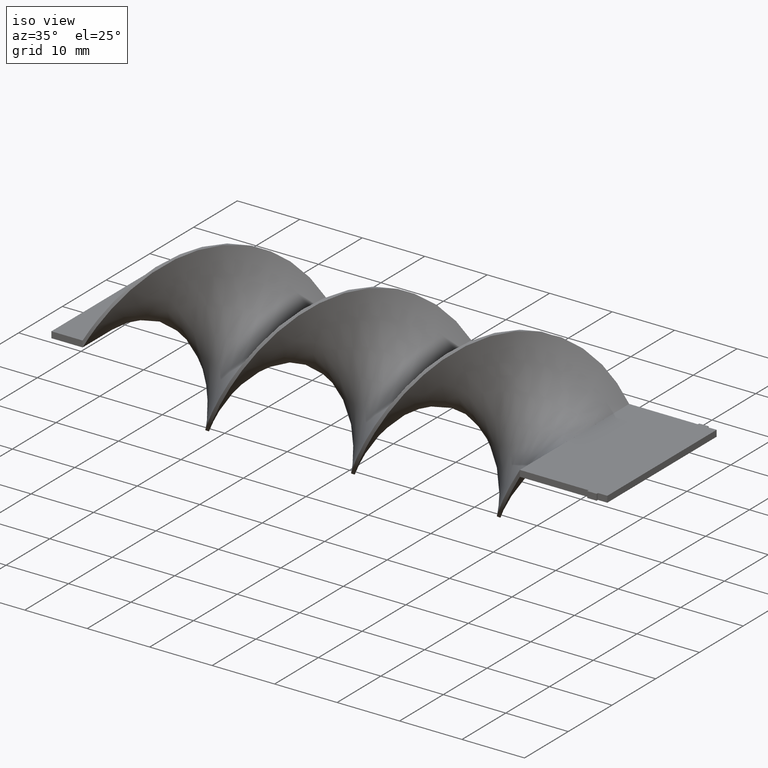
[diagram: clean part render]
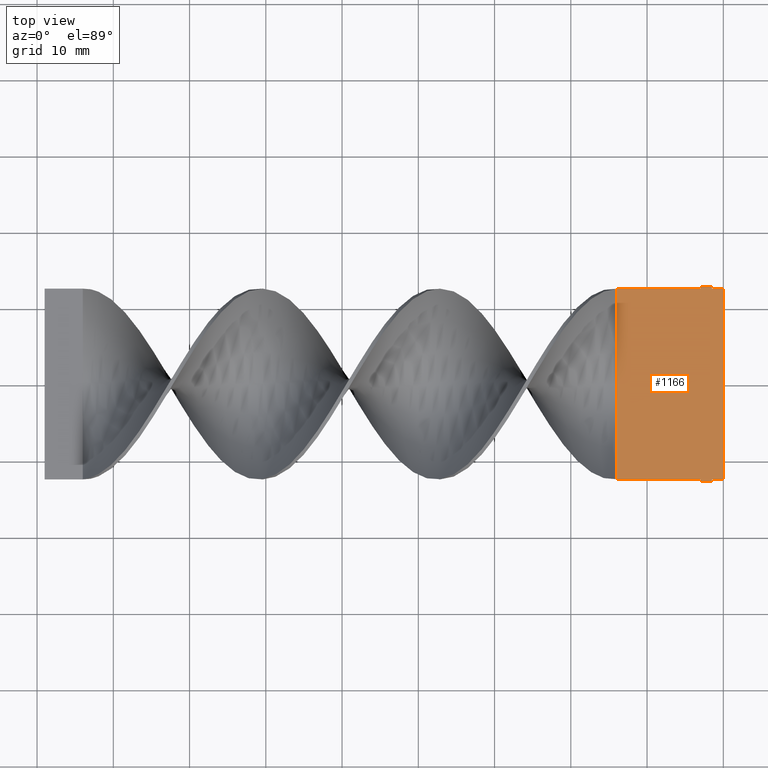
[diagram: tour spotlight — one face highlighted and labeled with its STEP entity id]
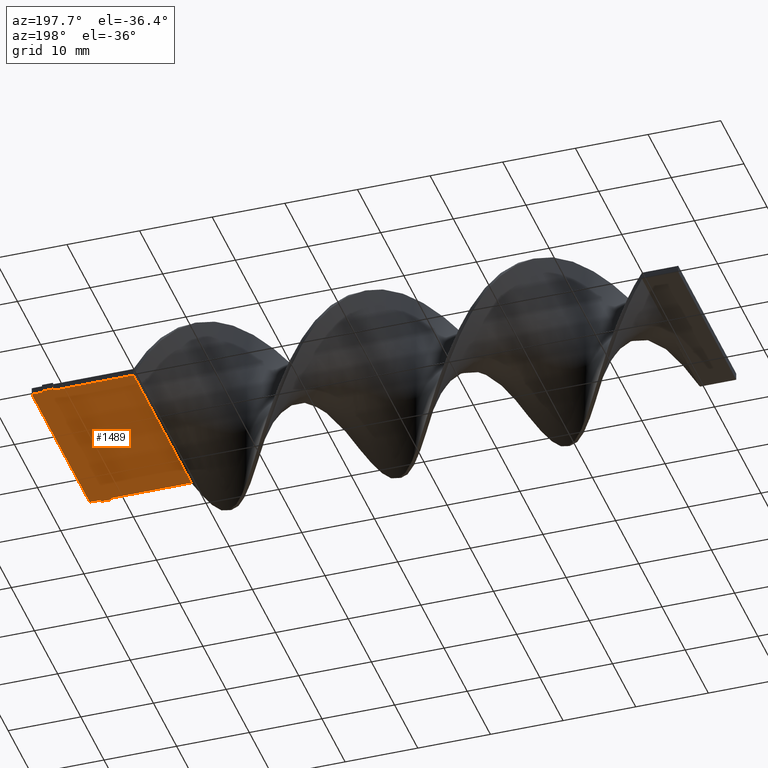
[diagram: tour spotlight — one face highlighted and labeled with its STEP entity id]
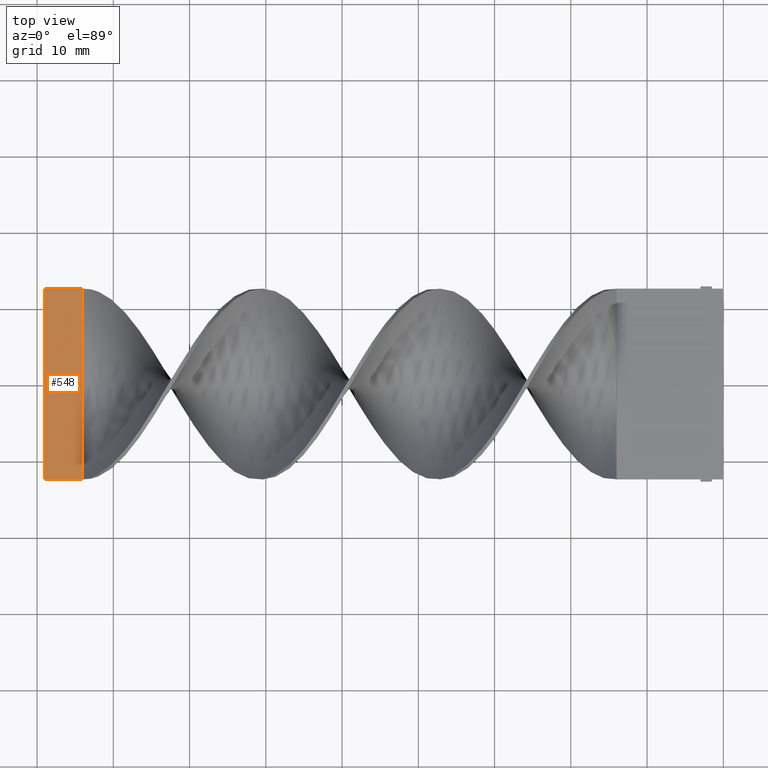
[diagram: tour spotlight — one face highlighted and labeled with its STEP entity id]
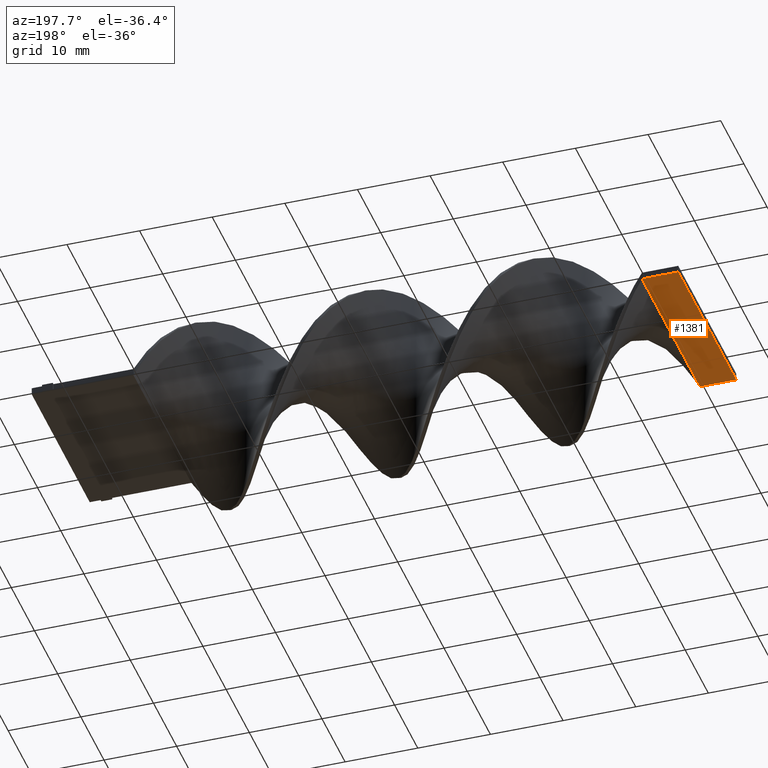
[diagram: tour spotlight — one face highlighted and labeled with its STEP entity id]
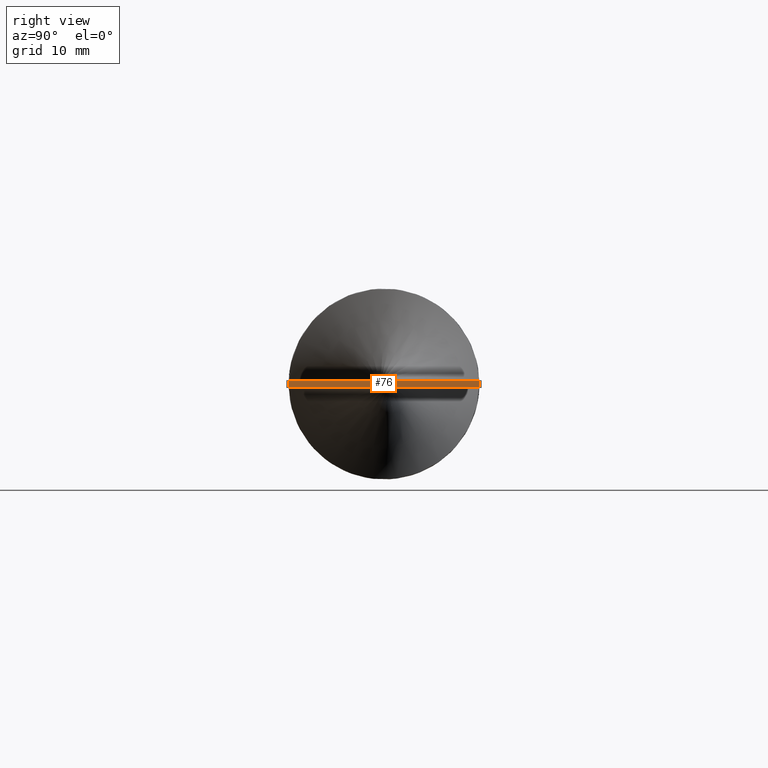
[diagram: tour spotlight — one face highlighted and labeled with its STEP entity id]
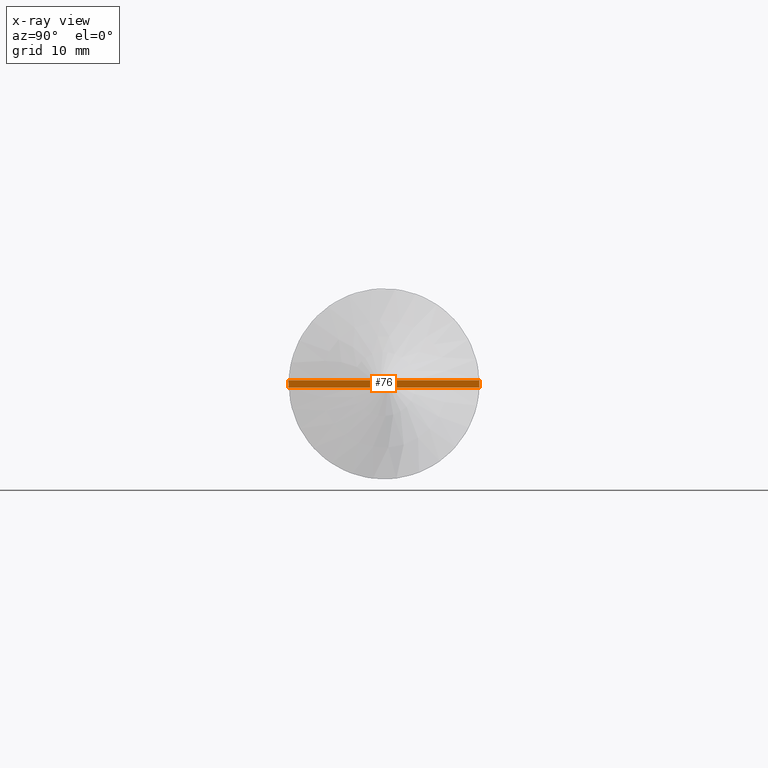
[diagram: x-ray of the same camera — body ghosted, this tour face saturated]
A machine part: a face-by-face anatomy tour. The part has 22 B-rep faces; the first image is the clean iso view, then the 5 largest visible faces are spotlighted one at a time (largest first), each with its STEP entity span.

Face 1 — top view, entity #1166. In plain terms, the highlighted planar face has unit normal (0, 0, 1).
Definition (entity closure, byte-faithful):
#7 = ORIENTED_EDGE ( 'NONE', *, *, #1446, .T. ) ;
#13 = DIRECTION ( 'NONE',  ( 0.000000000000000000, 0.000000000000000000, 1.000000000000000000 ) ) ;
#31 = DIRECTION ( 'NONE',  ( -1.445602896647339706E-15, -1.000000000000000000, 0.000000000000000000 ) ) ;
#69 = VECTOR ( 'NONE', #1115, 1000.000000000000000 ) ;
#86 = CARTESIAN_POINT ( 'NONE',  ( -2.999999999999996003, 12.50000000000000000, 0.5000000000000000000 ) ) ;
#107 = CARTESIAN_POINT ( 'NONE',  ( -13.99999999999999822, 12.49999999999999822, 0.5000000000000000000 ) ) ;
#114 = ORIENTED_EDGE ( 'NONE', *, *, #1146, .T. ) ;
#127 = VERTEX_POINT ( 'NONE', #908 ) ;
#131 = LINE ( 'NONE', #262, #676 ) ;
#140 = FACE_OUTER_BOUND ( 'NONE', #361, .T. ) ;
#147 = CARTESIAN_POINT ( 'NONE',  ( 0.000000000000000000, -12.50000000000000000, 0.5000000000000000000 ) ) ;
#149 = CARTESIAN_POINT ( 'NONE',  ( -3.061616997868383043E-15, 12.50000000000000000, 0.5000000000000000000 ) ) ;
#197 = VECTOR ( 'NONE', #31, 1000.000000000000000 ) ;
#219 = ORIENTED_EDGE ( 'NONE', *, *, #585, .F. ) ;
#229 = ORIENTED_EDGE ( 'NONE', *, *, #634, .F. ) ;
#236 = LINE ( 'NONE', #107, #69 ) ;
#244 = VERTEX_POINT ( 'NONE', #147 ) ;
#247 = CARTESIAN_POINT ( 'NONE',  ( -13.99999999999999822, 12.49999999999999822, 0.5000000000000000000 ) ) ;
#261 = CARTESIAN_POINT ( 'NONE',  ( -2.999999999999992895, -12.80000000000000071, 0.5000000000000000000 ) ) ;
#262 = CARTESIAN_POINT ( 'NONE',  ( -3.061616997868383043E-15, 12.50000000000000000, 0.5000000000000000000 ) ) ;
#271 = CARTESIAN_POINT ( 'NONE',  ( -2.999999999999995559, 12.80000000000000071, 0.5000000000000000000 ) ) ;
#314 = DIRECTION ( 'NONE',  ( -7.228014483236698528E-16, -1.000000000000000000, 0.000000000000000000 ) ) ;
#335 = VECTOR ( 'NONE', #314, 1000.000000000000000 ) ;
#354 = EDGE_CURVE ( 'NONE', #606, #909, #784, .T. ) ;
#361 = EDGE_LOOP ( 'NONE', ( #947, #1434, #114, #1249, #7, #1096, #1613, #620, #219, #1527, #376, #229 ) ) ;
#367 = VECTOR ( 'NONE', #1288, 1000.000000000000000 ) ;
#374 = DIRECTION ( 'NONE',  ( -1.000000000000000000, 0.000000000000000000, 0.000000000000000000 ) ) ;
#376 = ORIENTED_EDGE ( 'NONE', *, *, #849, .F. ) ;
#381 = CARTESIAN_POINT ( 'NONE',  ( -2.999999999999993339, -12.50000000000000000, 0.5000000000000000000 ) ) ;
#435 = CARTESIAN_POINT ( 'NONE',  ( -2.999999999999992895, -12.80000000000000071, 0.5000000000000000000 ) ) ;
#449 = EDGE_CURVE ( 'NONE', #244, #1121, #1048, .T. ) ;
#454 = LINE ( 'NONE', #819, #475 ) ;
#464 = DIRECTION ( 'NONE',  ( -1.000000000000000000, -1.577021341797097067E-16, 0.000000000000000000 ) ) ;
#475 = VECTOR ( 'NONE', #464, 1000.000000000000000 ) ;
#491 = VERTEX_POINT ( 'NONE', #1199 ) ;
#556 = DIRECTION ( 'NONE',  ( -1.000000000000000000, 0.000000000000000000, 0.000000000000000000 ) ) ;
#557 = DIRECTION ( 'NONE',  ( -1.000000000000000000, 0.000000000000000000, 0.000000000000000000 ) ) ;
#559 = DIRECTION ( 'NONE',  ( -1.224646799147353207E-16, 1.000000000000000000, 0.000000000000000000 ) ) ;
#574 = VECTOR ( 'NONE', #557, 1000.000000000000000 ) ;
#585 = EDGE_CURVE ( 'NONE', #909, #985, #454, .T. ) ;
#600 = VECTOR ( 'NONE', #1458, 1000.000000000000000 ) ;
#606 = VERTEX_POINT ( 'NONE', #435 ) ;
#614 = EDGE_CURVE ( 'NONE', #244, #1079, #917, .T. ) ;
#620 = ORIENTED_EDGE ( 'NONE', *, *, #699, .T. ) ;
#634 = EDGE_CURVE ( 'NONE', #1079, #1354, #639, .T. ) ;
#639 = LINE ( 'NONE', #648, #335 ) ;
#645 = EDGE_CURVE ( 'NONE', #127, #1228, #1451, .T. ) ;
#648 = CARTESIAN_POINT ( 'NONE',  ( -1.499999999999992450, -12.50000000000000000, 0.5000000000000000000 ) ) ;
#649 = CARTESIAN_POINT ( 'NONE',  ( 0.000000000000000000, 0.000000000000000000, 0.5000000000000000000 ) ) ;
#655 = CARTESIAN_POINT ( 'NONE',  ( -1.499999999999995781, 12.80000000000000071, 0.5000000000000000000 ) ) ;
#657 = CARTESIAN_POINT ( 'NONE',  ( -13.99999999999999467, -12.50000000000000178, 0.5000000000000000000 ) ) ;
#676 = VECTOR ( 'NONE', #374, 1000.000000000000000 ) ;
#684 = EDGE_CURVE ( 'NONE', #1285, #1317, #1594, .T. ) ;
#699 = EDGE_CURVE ( 'NONE', #1228, #985, #236, .T. ) ;
#784 = LINE ( 'NONE', #261, #367 ) ;
#796 = CARTESIAN_POINT ( 'NONE',  ( -1.499999999999992673, -12.80000000000000071, 0.5000000000000000000 ) ) ;
#819 = CARTESIAN_POINT ( 'NONE',  ( -2.999999999999993339, -12.50000000000000000, 0.5000000000000000000 ) ) ;
#826 = DIRECTION ( 'NONE',  ( -1.000000000000000000, 0.000000000000000000, 0.000000000000000000 ) ) ;
#849 = EDGE_CURVE ( 'NONE', #1354, #606, #1579, .T. ) ;
#853 = CARTESIAN_POINT ( 'NONE',  ( -1.499999999999995559, 12.50000000000000000, 0.5000000000000000000 ) ) ;
#908 = CARTESIAN_POINT ( 'NONE',  ( -2.999999999999996003, 12.50000000000000000, 0.5000000000000000000 ) ) ;
#909 = VERTEX_POINT ( 'NONE', #381 ) ;
#917 = LINE ( 'NONE', #1416, #574 ) ;
#947 = ORIENTED_EDGE ( 'NONE', *, *, #614, .F. ) ;
#985 = VERTEX_POINT ( 'NONE', #657 ) ;
#986 = AXIS2_PLACEMENT_3D ( 'NONE', #649, #13, #995 ) ;
#995 = DIRECTION ( 'NONE',  ( 1.000000000000000000, 0.000000000000000000, -0.000000000000000000 ) ) ;
#1044 = EDGE_CURVE ( 'NONE', #491, #127, #1157, .T. ) ;
#1048 = LINE ( 'NONE', #1449, #1071 ) ;
#1071 = VECTOR ( 'NONE', #559, 1000.000000000000000 ) ;
#1079 = VERTEX_POINT ( 'NONE', #1616 ) ;
#1096 = ORIENTED_EDGE ( 'NONE', *, *, #1044, .T. ) ;
#1115 = DIRECTION ( 'NONE',  ( 1.387778780781445676E-16, -1.000000000000000000, 0.000000000000000000 ) ) ;
#1121 = VERTEX_POINT ( 'NONE', #149 ) ;
#1146 = EDGE_CURVE ( 'NONE', #1121, #1285, #131, .T. ) ;
#1157 = LINE ( 'NONE', #271, #197 ) ;
#1166 = ADVANCED_FACE ( 'NONE', ( #140 ), #1365, .T. ) ;
#1199 = CARTESIAN_POINT ( 'NONE',  ( -2.999999999999995559, 12.80000000000000071, 0.5000000000000000000 ) ) ;
#1203 = VECTOR ( 'NONE', #556, 1000.000000000000000 ) ;
#1228 = VERTEX_POINT ( 'NONE', #247 ) ;
#1249 = ORIENTED_EDGE ( 'NONE', *, *, #684, .T. ) ;
#1285 = VERTEX_POINT ( 'NONE', #1432 ) ;
#1288 = DIRECTION ( 'NONE',  ( -1.445602896647339706E-15, 1.000000000000000000, 0.000000000000000000 ) ) ;
#1317 = VERTEX_POINT ( 'NONE', #655 ) ;
#1324 = CARTESIAN_POINT ( 'NONE',  ( -1.499999999999995781, 12.80000000000000071, 0.5000000000000000000 ) ) ;
#1354 = VERTEX_POINT ( 'NONE', #796 ) ;
#1365 = PLANE ( 'NONE',  #986 ) ;
#1377 = VECTOR ( 'NONE', #1564, 1000.000000000000000 ) ;
#1416 = CARTESIAN_POINT ( 'NONE',  ( 0.000000000000000000, -12.50000000000000000, 0.5000000000000000000 ) ) ;
#1432 = CARTESIAN_POINT ( 'NONE',  ( -1.499999999999995559, 12.50000000000000000, 0.5000000000000000000 ) ) ;
#1434 = ORIENTED_EDGE ( 'NONE', *, *, #449, .T. ) ;
#1446 = EDGE_CURVE ( 'NONE', #1317, #491, #1563, .T. ) ;
#1449 = CARTESIAN_POINT ( 'NONE',  ( 0.000000000000000000, -12.50000000000000000, 0.5000000000000000000 ) ) ;
#1451 = LINE ( 'NONE', #86, #600 ) ;
#1458 = DIRECTION ( 'NONE',  ( -1.000000000000000000, -1.577021341797097067E-16, 0.000000000000000000 ) ) ;
#1527 = ORIENTED_EDGE ( 'NONE', *, *, #354, .F. ) ;
#1530 = VECTOR ( 'NONE', #826, 1000.000000000000000 ) ;
#1563 = LINE ( 'NONE', #1324, #1203 ) ;
#1564 = DIRECTION ( 'NONE',  ( -7.228014483236698528E-16, 1.000000000000000000, 0.000000000000000000 ) ) ;
#1579 = LINE ( 'NONE', #1608, #1530 ) ;
#1594 = LINE ( 'NONE', #853, #1377 ) ;
#1608 = CARTESIAN_POINT ( 'NONE',  ( -1.499999999999992673, -12.80000000000000071, 0.5000000000000000000 ) ) ;
#1613 = ORIENTED_EDGE ( 'NONE', *, *, #645, .T. ) ;
#1616 = CARTESIAN_POINT ( 'NONE',  ( -1.499999999999992450, -12.50000000000000000, 0.5000000000000000000 ) ) ;

Face 2 — auxiliary view, entity #1489. In plain terms, the highlighted planar face has unit normal (0, 0, 1).
Definition (entity closure, byte-faithful):
#39 = DIRECTION ( 'NONE',  ( -1.445602896647339706E-15, 1.000000000000000000, 0.000000000000000000 ) ) ;
#48 = VECTOR ( 'NONE', #191, 1000.000000000000000 ) ;
#100 = ORIENTED_EDGE ( 'NONE', *, *, #1197, .F. ) ;
#117 = LINE ( 'NONE', #529, #696 ) ;
#122 = VECTOR ( 'NONE', #1173, 1000.000000000000000 ) ;
#124 = CARTESIAN_POINT ( 'NONE',  ( -13.99999999999999467, -12.50000000000000178, -0.5000000000000000000 ) ) ;
#165 = LINE ( 'NONE', #518, #521 ) ;
#172 = VECTOR ( 'NONE', #632, 1000.000000000000000 ) ;
#185 = DIRECTION ( 'NONE',  ( -1.000000000000000000, 0.000000000000000000, 0.000000000000000000 ) ) ;
#191 = DIRECTION ( 'NONE',  ( -1.000000000000000000, 0.000000000000000000, 0.000000000000000000 ) ) ;
#201 = DIRECTION ( 'NONE',  ( 0.000000000000000000, 0.000000000000000000, 1.000000000000000000 ) ) ;
#215 = EDGE_CURVE ( 'NONE', #840, #383, #239, .T. ) ;
#237 = VERTEX_POINT ( 'NONE', #1140 ) ;
#239 = LINE ( 'NONE', #366, #1583 ) ;
#255 = CARTESIAN_POINT ( 'NONE',  ( -13.99999999999999822, 12.49999999999999822, -0.5000000000000000000 ) ) ;
#267 = VERTEX_POINT ( 'NONE', #766 ) ;
#270 = LINE ( 'NONE', #1165, #831 ) ;
#292 = DIRECTION ( 'NONE',  ( -1.000000000000000000, -1.577021341797097067E-16, 0.000000000000000000 ) ) ;
#319 = EDGE_CURVE ( 'NONE', #741, #237, #165, .T. ) ;
#322 = LINE ( 'NONE', #686, #1041 ) ;
#350 = VERTEX_POINT ( 'NONE', #1027 ) ;
#355 = CARTESIAN_POINT ( 'NONE',  ( -1.499999999999992450, -12.50000000000000000, -0.5000000000000000000 ) ) ;
#366 = CARTESIAN_POINT ( 'NONE',  ( -2.999999999999995559, 12.80000000000000071, -0.5000000000000000000 ) ) ;
#383 = VERTEX_POINT ( 'NONE', #425 ) ;
#396 = EDGE_CURVE ( 'NONE', #350, #769, #270, .T. ) ;
#406 = EDGE_CURVE ( 'NONE', #1264, #1120, #1037, .T. ) ;
#425 = CARTESIAN_POINT ( 'NONE',  ( -2.999999999999996003, 12.50000000000000000, -0.5000000000000000000 ) ) ;
#434 = EDGE_CURVE ( 'NONE', #383, #1236, #322, .T. ) ;
#453 = FACE_OUTER_BOUND ( 'NONE', #1440, .T. ) ;
#462 = ORIENTED_EDGE ( 'NONE', *, *, #215, .F. ) ;
#473 = EDGE_CURVE ( 'NONE', #1108, #741, #1056, .T. ) ;
#478 = DIRECTION ( 'NONE',  ( -1.000000000000000000, -1.577021341797097067E-16, 0.000000000000000000 ) ) ;
#482 = ORIENTED_EDGE ( 'NONE', *, *, #406, .T. ) ;
#499 = EDGE_CURVE ( 'NONE', #267, #1264, #1558, .T. ) ;
#507 = LINE ( 'NONE', #885, #1455 ) ;
#518 = CARTESIAN_POINT ( 'NONE',  ( -1.499999999999995559, 12.50000000000000000, -0.5000000000000000000 ) ) ;
#519 = CARTESIAN_POINT ( 'NONE',  ( 0.000000000000000000, -12.50000000000000000, -0.5000000000000000000 ) ) ;
#521 = VECTOR ( 'NONE', #1496, 1000.000000000000000 ) ;
#529 = CARTESIAN_POINT ( 'NONE',  ( -1.499999999999995781, 12.80000000000000071, -0.5000000000000000000 ) ) ;
#564 = CARTESIAN_POINT ( 'NONE',  ( -2.999999999999993339, -12.50000000000000000, -0.5000000000000000000 ) ) ;
#565 = EDGE_CURVE ( 'NONE', #1120, #350, #1566, .T. ) ;
#573 = CARTESIAN_POINT ( 'NONE',  ( -1.499999999999992673, -12.80000000000000071, -0.5000000000000000000 ) ) ;
#595 = CARTESIAN_POINT ( 'NONE',  ( -2.999999999999995559, 12.80000000000000071, -0.5000000000000000000 ) ) ;
#598 = CARTESIAN_POINT ( 'NONE',  ( -1.499999999999995559, 12.50000000000000000, -0.5000000000000000000 ) ) ;
#628 = ORIENTED_EDGE ( 'NONE', *, *, #434, .F. ) ;
#632 = DIRECTION ( 'NONE',  ( -1.224646799147353207E-16, 1.000000000000000000, 0.000000000000000000 ) ) ;
#686 = CARTESIAN_POINT ( 'NONE',  ( -2.999999999999996003, 12.50000000000000000, -0.5000000000000000000 ) ) ;
#696 = VECTOR ( 'NONE', #1255, 1000.000000000000000 ) ;
#720 = ORIENTED_EDGE ( 'NONE', *, *, #565, .T. ) ;
#738 = DIRECTION ( 'NONE',  ( -1.445602896647339706E-15, -1.000000000000000000, 0.000000000000000000 ) ) ;
#741 = VERTEX_POINT ( 'NONE', #598 ) ;
#763 = ORIENTED_EDGE ( 'NONE', *, *, #396, .T. ) ;
#766 = CARTESIAN_POINT ( 'NONE',  ( 0.000000000000000000, -12.50000000000000000, -0.5000000000000000000 ) ) ;
#769 = VERTEX_POINT ( 'NONE', #564 ) ;
#778 = VECTOR ( 'NONE', #478, 1000.000000000000000 ) ;
#820 = ORIENTED_EDGE ( 'NONE', *, *, #319, .F. ) ;
#831 = VECTOR ( 'NONE', #39, 1000.000000000000000 ) ;
#840 = VERTEX_POINT ( 'NONE', #595 ) ;
#866 = EDGE_CURVE ( 'NONE', #769, #993, #1322, .T. ) ;
#885 = CARTESIAN_POINT ( 'NONE',  ( -13.99999999999999822, 12.49999999999999822, -0.5000000000000000000 ) ) ;
#911 = CARTESIAN_POINT ( 'NONE',  ( -1.499999999999992450, -12.50000000000000000, -0.5000000000000000000 ) ) ;
#920 = CARTESIAN_POINT ( 'NONE',  ( -3.061616997868383043E-15, 12.50000000000000000, -0.5000000000000000000 ) ) ;
#924 = PLANE ( 'NONE',  #1298 ) ;
#927 = DIRECTION ( 'NONE',  ( -1.000000000000000000, 0.000000000000000000, 0.000000000000000000 ) ) ;
#939 = CARTESIAN_POINT ( 'NONE',  ( 0.000000000000000000, 0.000000000000000000, -0.5000000000000000000 ) ) ;
#946 = EDGE_CURVE ( 'NONE', #237, #840, #117, .T. ) ;
#950 = ORIENTED_EDGE ( 'NONE', *, *, #866, .T. ) ;
#990 = DIRECTION ( 'NONE',  ( 1.387778780781445676E-16, -1.000000000000000000, 0.000000000000000000 ) ) ;
#993 = VERTEX_POINT ( 'NONE', #124 ) ;
#1006 = CARTESIAN_POINT ( 'NONE',  ( -1.499999999999992673, -12.80000000000000071, -0.5000000000000000000 ) ) ;
#1027 = CARTESIAN_POINT ( 'NONE',  ( -2.999999999999992895, -12.80000000000000071, -0.5000000000000000000 ) ) ;
#1037 = LINE ( 'NONE', #911, #122 ) ;
#1041 = VECTOR ( 'NONE', #292, 1000.000000000000000 ) ;
#1056 = LINE ( 'NONE', #920, #1177 ) ;
#1094 = EDGE_CURVE ( 'NONE', #1236, #993, #507, .T. ) ;
#1101 = ORIENTED_EDGE ( 'NONE', *, *, #499, .T. ) ;
#1108 = VERTEX_POINT ( 'NONE', #1487 ) ;
#1120 = VERTEX_POINT ( 'NONE', #1006 ) ;
#1140 = CARTESIAN_POINT ( 'NONE',  ( -1.499999999999995781, 12.80000000000000071, -0.5000000000000000000 ) ) ;
#1165 = CARTESIAN_POINT ( 'NONE',  ( -2.999999999999992895, -12.80000000000000071, -0.5000000000000000000 ) ) ;
#1173 = DIRECTION ( 'NONE',  ( -7.228014483236698528E-16, -1.000000000000000000, 0.000000000000000000 ) ) ;
#1177 = VECTOR ( 'NONE', #185, 1000.000000000000000 ) ;
#1197 = EDGE_CURVE ( 'NONE', #267, #1108, #1491, .T. ) ;
#1236 = VERTEX_POINT ( 'NONE', #255 ) ;
#1251 = VECTOR ( 'NONE', #927, 1000.000000000000000 ) ;
#1255 = DIRECTION ( 'NONE',  ( -1.000000000000000000, 0.000000000000000000, 0.000000000000000000 ) ) ;
#1264 = VERTEX_POINT ( 'NONE', #355 ) ;
#1298 = AXIS2_PLACEMENT_3D ( 'NONE', #939, #201, #1303 ) ;
#1303 = DIRECTION ( 'NONE',  ( 1.000000000000000000, 0.000000000000000000, -0.000000000000000000 ) ) ;
#1322 = LINE ( 'NONE', #1571, #778 ) ;
#1373 = ORIENTED_EDGE ( 'NONE', *, *, #1094, .F. ) ;
#1440 = EDGE_LOOP ( 'NONE', ( #1101, #482, #720, #763, #950, #1373, #628, #462, #1588, #820, #1597, #100 ) ) ;
#1455 = VECTOR ( 'NONE', #990, 1000.000000000000000 ) ;
#1487 = CARTESIAN_POINT ( 'NONE',  ( -3.061616997868383043E-15, 12.50000000000000000, -0.5000000000000000000 ) ) ;
#1489 = ADVANCED_FACE ( 'NONE', ( #453 ), #924, .F. ) ;
#1491 = LINE ( 'NONE', #519, #172 ) ;
#1496 = DIRECTION ( 'NONE',  ( -7.228014483236698528E-16, 1.000000000000000000, 0.000000000000000000 ) ) ;
#1545 = CARTESIAN_POINT ( 'NONE',  ( 0.000000000000000000, -12.50000000000000000, -0.5000000000000000000 ) ) ;
#1558 = LINE ( 'NONE', #1545, #1251 ) ;
#1566 = LINE ( 'NONE', #573, #48 ) ;
#1571 = CARTESIAN_POINT ( 'NONE',  ( -2.999999999999993339, -12.50000000000000000, -0.5000000000000000000 ) ) ;
#1583 = VECTOR ( 'NONE', #738, 1000.000000000000000 ) ;
#1588 = ORIENTED_EDGE ( 'NONE', *, *, #946, .F. ) ;
#1597 = ORIENTED_EDGE ( 'NONE', *, *, #473, .F. ) ;

Face 3 — top view, entity #548. In plain terms, the highlighted planar face has unit normal (0, -0, -1).
Definition (entity closure, byte-faithful):
#24 = CARTESIAN_POINT ( 'NONE',  ( -84.00000000000000000, -12.50000000000000178, 0.5000000000000015543 ) ) ;
#61 = CARTESIAN_POINT ( 'NONE',  ( -89.00000000000001421, -12.50000000000000178, 0.5000000000000015543 ) ) ;
#72 = DIRECTION ( 'NONE',  ( 0.000000000000000000, 1.000000000000000000, -1.214306433183764966E-16 ) ) ;
#81 = LINE ( 'NONE', #431, #904 ) ;
#119 = EDGE_LOOP ( 'NONE', ( #1052, #735, #531, #1585 ) ) ;
#193 = EDGE_CURVE ( 'NONE', #887, #203, #1063, .T. ) ;
#200 = CARTESIAN_POINT ( 'NONE',  ( -89.00000000000001421, 12.49999999999999822, 0.4999999999999985012 ) ) ;
#203 = VERTEX_POINT ( 'NONE', #1112 ) ;
#409 = CARTESIAN_POINT ( 'NONE',  ( -84.00000000000000000, 4.166666666666666075, 0.4999999999999994449 ) ) ;
#431 = CARTESIAN_POINT ( 'NONE',  ( -89.00000000000001421, -12.50000000000000178, 0.5000000000000015543 ) ) ;
#461 = CARTESIAN_POINT ( 'NONE',  ( -89.00000000000001421, -12.50000000000000178, 0.5000000000000015543 ) ) ;
#531 = ORIENTED_EDGE ( 'NONE', *, *, #1522, .F. ) ;
#548 = ADVANCED_FACE ( 'NONE', ( #1188 ), #806, .F. ) ;
#594 = DIRECTION ( 'NONE',  ( 1.000000000000000000, -0.000000000000000000, -0.000000000000000000 ) ) ;
#650 = VECTOR ( 'NONE', #594, 1000.000000000000000 ) ;
#734 = VERTEX_POINT ( 'NONE', #461 ) ;
#735 = ORIENTED_EDGE ( 'NONE', *, *, #193, .F. ) ;
#775 = LINE ( 'NONE', #1280, #1123 ) ;
#806 = PLANE ( 'NONE',  #1276 ) ;
#869 = DIRECTION ( 'NONE',  ( 1.000000000000000000, -0.000000000000000000, -0.000000000000000000 ) ) ;
#887 = VERTEX_POINT ( 'NONE', #200 ) ;
#904 = VECTOR ( 'NONE', #72, 1000.000000000000000 ) ;
#1046 = DIRECTION ( 'NONE',  ( 0.000000000000000000, 1.000000000000000000, -1.214306433183764966E-16 ) ) ;
#1052 = ORIENTED_EDGE ( 'NONE', *, *, #1600, .T. ) ;
#1063 = LINE ( 'NONE', #1214, #650 ) ;
#1065 = DIRECTION ( 'NONE',  ( 0.000000000000000000, -1.214306433183764966E-16, -1.000000000000000000 ) ) ;
#1076 = EDGE_CURVE ( 'NONE', #734, #1362, #775, .T. ) ;
#1112 = CARTESIAN_POINT ( 'NONE',  ( -84.00000000000000000, 12.49999999999999822, 0.4999999999999985012 ) ) ;
#1123 = VECTOR ( 'NONE', #869, 1000.000000000000000 ) ;
#1135 = B_SPLINE_CURVE_WITH_KNOTS ( 'NONE', 3,
 ( #24, #1515, #409, #1142 ),
 .UNSPECIFIED., .F., .F.,
 ( 4, 4 ),
 ( 0.000000000000000000, 1.000000000000000000 ),
 .UNSPECIFIED. ) ;
#1142 = CARTESIAN_POINT ( 'NONE',  ( -84.00000000000000000, 12.49999999999999822, 0.4999999999999985012 ) ) ;
#1188 = FACE_OUTER_BOUND ( 'NONE', #119, .T. ) ;
#1214 = CARTESIAN_POINT ( 'NONE',  ( -89.00000000000001421, 12.49999999999999822, 0.4999999999999985012 ) ) ;
#1276 = AXIS2_PLACEMENT_3D ( 'NONE', #61, #1065, #1046 ) ;
#1280 = CARTESIAN_POINT ( 'NONE',  ( -89.00000000000001421, -12.50000000000000178, 0.5000000000000015543 ) ) ;
#1362 = VERTEX_POINT ( 'NONE', #1548 ) ;
#1515 = CARTESIAN_POINT ( 'NONE',  ( -84.00000000000000000, -4.166666666666669627, 0.5000000000000005551 ) ) ;
#1522 = EDGE_CURVE ( 'NONE', #734, #887, #81, .T. ) ;
#1548 = CARTESIAN_POINT ( 'NONE',  ( -84.00000000000000000, -12.50000000000000178, 0.5000000000000015543 ) ) ;
#1585 = ORIENTED_EDGE ( 'NONE', *, *, #1076, .T. ) ;
#1600 = EDGE_CURVE ( 'NONE', #1362, #203, #1135, .T. ) ;

Face 4 — auxiliary view, entity #1381. In plain terms, the highlighted planar face has unit normal (0, 0, 1).
Definition (entity closure, byte-faithful):
#10 = ORIENTED_EDGE ( 'NONE', *, *, #1411, .T. ) ;
#94 = AXIS2_PLACEMENT_3D ( 'NONE', #704, #318, #691 ) ;
#176 = CARTESIAN_POINT ( 'NONE',  ( -89.00000000000001421, -12.50000000000000178, -0.4999999999999985012 ) ) ;
#190 = CARTESIAN_POINT ( 'NONE',  ( -89.00000000000001421, 12.49999999999999822, -0.5000000000000015543 ) ) ;
#264 = EDGE_CURVE ( 'NONE', #1465, #1502, #1519, .T. ) ;
#275 = VECTOR ( 'NONE', #1194, 1000.000000000000000 ) ;
#277 = CARTESIAN_POINT ( 'NONE',  ( -89.00000000000001421, -12.50000000000000178, -0.4999999999999985012 ) ) ;
#318 = DIRECTION ( 'NONE',  ( 0.000000000000000000, 1.214306433183764966E-16, 1.000000000000000000 ) ) ;
#327 = CARTESIAN_POINT ( 'NONE',  ( -89.00000000000001421, 12.49999999999999822, -0.5000000000000015543 ) ) ;
#329 = EDGE_CURVE ( 'NONE', #1502, #751, #656, .T. ) ;
#439 = PLANE ( 'NONE',  #94 ) ;
#490 = EDGE_LOOP ( 'NONE', ( #1128, #1388, #828, #10 ) ) ;
#516 = EDGE_CURVE ( 'NONE', #1343, #751, #1180, .T. ) ;
#567 = CARTESIAN_POINT ( 'NONE',  ( -84.00000000000000000, 4.166666666666666075, -0.5000000000000005551 ) ) ;
#656 = LINE ( 'NONE', #277, #876 ) ;
#691 = DIRECTION ( 'NONE',  ( 0.000000000000000000, -1.000000000000000000, 1.214306433183764966E-16 ) ) ;
#704 = CARTESIAN_POINT ( 'NONE',  ( -89.00000000000001421, 12.49999999999999822, -0.5000000000000015543 ) ) ;
#751 = VERTEX_POINT ( 'NONE', #1182 ) ;
#828 = ORIENTED_EDGE ( 'NONE', *, *, #264, .F. ) ;
#876 = VECTOR ( 'NONE', #1531, 1000.000000000000000 ) ;
#949 = CARTESIAN_POINT ( 'NONE',  ( -84.00000000000000000, -12.50000000000000178, -0.4999999999999985012 ) ) ;
#1005 = DIRECTION ( 'NONE',  ( 0.000000000000000000, -1.000000000000000000, 1.214306433183764966E-16 ) ) ;
#1062 = CARTESIAN_POINT ( 'NONE',  ( -84.00000000000000000, 12.49999999999999822, -0.5000000000000015543 ) ) ;
#1070 = FACE_OUTER_BOUND ( 'NONE', #490, .T. ) ;
#1082 = LINE ( 'NONE', #327, #275 ) ;
#1128 = ORIENTED_EDGE ( 'NONE', *, *, #516, .T. ) ;
#1180 = B_SPLINE_CURVE_WITH_KNOTS ( 'NONE', 3,
 ( #1190, #567, #1320, #949 ),
 .UNSPECIFIED., .F., .F.,
 ( 4, 4 ),
 ( 0.000000000000000000, 1.000000000000000000 ),
 .UNSPECIFIED. ) ;
#1182 = CARTESIAN_POINT ( 'NONE',  ( -84.00000000000000000, -12.50000000000000178, -0.4999999999999985012 ) ) ;
#1190 = CARTESIAN_POINT ( 'NONE',  ( -84.00000000000000000, 12.49999999999999822, -0.5000000000000015543 ) ) ;
#1194 = DIRECTION ( 'NONE',  ( 1.000000000000000000, -0.000000000000000000, -0.000000000000000000 ) ) ;
#1301 = VECTOR ( 'NONE', #1005, 1000.000000000000000 ) ;
#1320 = CARTESIAN_POINT ( 'NONE',  ( -84.00000000000000000, -4.166666666666669627, -0.4999999999999994449 ) ) ;
#1343 = VERTEX_POINT ( 'NONE', #1062 ) ;
#1381 = ADVANCED_FACE ( 'NONE', ( #1070 ), #439, .F. ) ;
#1388 = ORIENTED_EDGE ( 'NONE', *, *, #329, .F. ) ;
#1399 = CARTESIAN_POINT ( 'NONE',  ( -89.00000000000001421, 12.49999999999999822, -0.5000000000000015543 ) ) ;
#1411 = EDGE_CURVE ( 'NONE', #1465, #1343, #1082, .T. ) ;
#1465 = VERTEX_POINT ( 'NONE', #190 ) ;
#1502 = VERTEX_POINT ( 'NONE', #176 ) ;
#1519 = LINE ( 'NONE', #1399, #1301 ) ;
#1531 = DIRECTION ( 'NONE',  ( 1.000000000000000000, -0.000000000000000000, -0.000000000000000000 ) ) ;

Face 5 — right view, entity #76. An x-ray twin of the same camera follows (body ghosted, this face saturated) — the face is partly hidden behind the body. In plain terms, the highlighted planar face has unit normal (-1, -0, 0).
Definition (entity closure, byte-faithful):
#76 = ADVANCED_FACE ( 'NONE', ( #804 ), #170, .F. ) ;
#116 = EDGE_CURVE ( 'NONE', #1121, #1108, #813, .T. ) ;
#147 = CARTESIAN_POINT ( 'NONE',  ( 0.000000000000000000, -12.50000000000000000, 0.5000000000000000000 ) ) ;
#148 = EDGE_LOOP ( 'NONE', ( #1064, #1045, #772, #1256 ) ) ;
#149 = CARTESIAN_POINT ( 'NONE',  ( -3.061616997868383043E-15, 12.50000000000000000, 0.5000000000000000000 ) ) ;
#170 = PLANE ( 'NONE',  #1122 ) ;
#172 = VECTOR ( 'NONE', #632, 1000.000000000000000 ) ;
#244 = VERTEX_POINT ( 'NONE', #147 ) ;
#267 = VERTEX_POINT ( 'NONE', #766 ) ;
#298 = DIRECTION ( 'NONE',  ( -0.000000000000000000, -0.000000000000000000, -1.000000000000000000 ) ) ;
#449 = EDGE_CURVE ( 'NONE', #244, #1121, #1048, .T. ) ;
#519 = CARTESIAN_POINT ( 'NONE',  ( 0.000000000000000000, -12.50000000000000000, -0.5000000000000000000 ) ) ;
#525 = EDGE_CURVE ( 'NONE', #244, #267, #809, .T. ) ;
#552 = VECTOR ( 'NONE', #791, 1000.000000000000000 ) ;
#559 = DIRECTION ( 'NONE',  ( -1.224646799147353207E-16, 1.000000000000000000, 0.000000000000000000 ) ) ;
#623 = VECTOR ( 'NONE', #298, 1000.000000000000000 ) ;
#632 = DIRECTION ( 'NONE',  ( -1.224646799147353207E-16, 1.000000000000000000, 0.000000000000000000 ) ) ;
#766 = CARTESIAN_POINT ( 'NONE',  ( 0.000000000000000000, -12.50000000000000000, -0.5000000000000000000 ) ) ;
#772 = ORIENTED_EDGE ( 'NONE', *, *, #449, .F. ) ;
#791 = DIRECTION ( 'NONE',  ( -0.000000000000000000, -0.000000000000000000, -1.000000000000000000 ) ) ;
#804 = FACE_OUTER_BOUND ( 'NONE', #148, .T. ) ;
#809 = LINE ( 'NONE', #1196, #552 ) ;
#813 = LINE ( 'NONE', #1424, #623 ) ;
#925 = DIRECTION ( 'NONE',  ( 1.224646799147353207E-16, -1.000000000000000000, 0.000000000000000000 ) ) ;
#931 = CARTESIAN_POINT ( 'NONE',  ( 0.000000000000000000, -12.50000000000000000, 0.5000000000000000000 ) ) ;
#1045 = ORIENTED_EDGE ( 'NONE', *, *, #116, .F. ) ;
#1048 = LINE ( 'NONE', #1449, #1071 ) ;
#1064 = ORIENTED_EDGE ( 'NONE', *, *, #1197, .T. ) ;
#1071 = VECTOR ( 'NONE', #559, 1000.000000000000000 ) ;
#1108 = VERTEX_POINT ( 'NONE', #1487 ) ;
#1121 = VERTEX_POINT ( 'NONE', #149 ) ;
#1122 = AXIS2_PLACEMENT_3D ( 'NONE', #931, #1161, #925 ) ;
#1161 = DIRECTION ( 'NONE',  ( -1.000000000000000000, -1.224646799147353207E-16, 0.000000000000000000 ) ) ;
#1196 = CARTESIAN_POINT ( 'NONE',  ( 0.000000000000000000, -12.50000000000000000, 0.5000000000000000000 ) ) ;
#1197 = EDGE_CURVE ( 'NONE', #267, #1108, #1491, .T. ) ;
#1256 = ORIENTED_EDGE ( 'NONE', *, *, #525, .T. ) ;
#1424 = CARTESIAN_POINT ( 'NONE',  ( -3.061616997868383043E-15, 12.50000000000000000, 0.5000000000000000000 ) ) ;
#1449 = CARTESIAN_POINT ( 'NONE',  ( 0.000000000000000000, -12.50000000000000000, 0.5000000000000000000 ) ) ;
#1487 = CARTESIAN_POINT ( 'NONE',  ( -3.061616997868383043E-15, 12.50000000000000000, -0.5000000000000000000 ) ) ;
#1491 = LINE ( 'NONE', #519, #172 ) ;